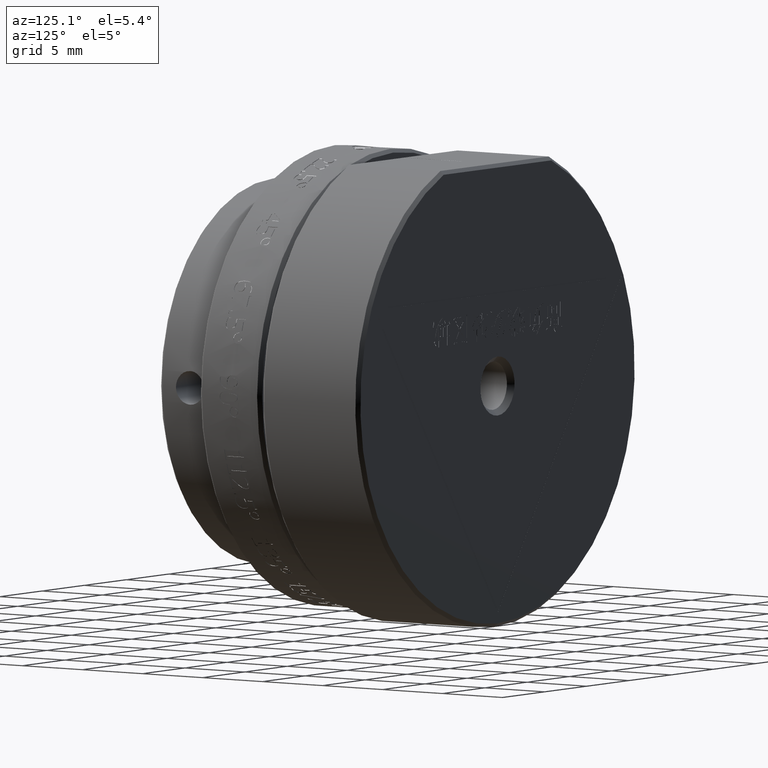
[diagram: clean part render]
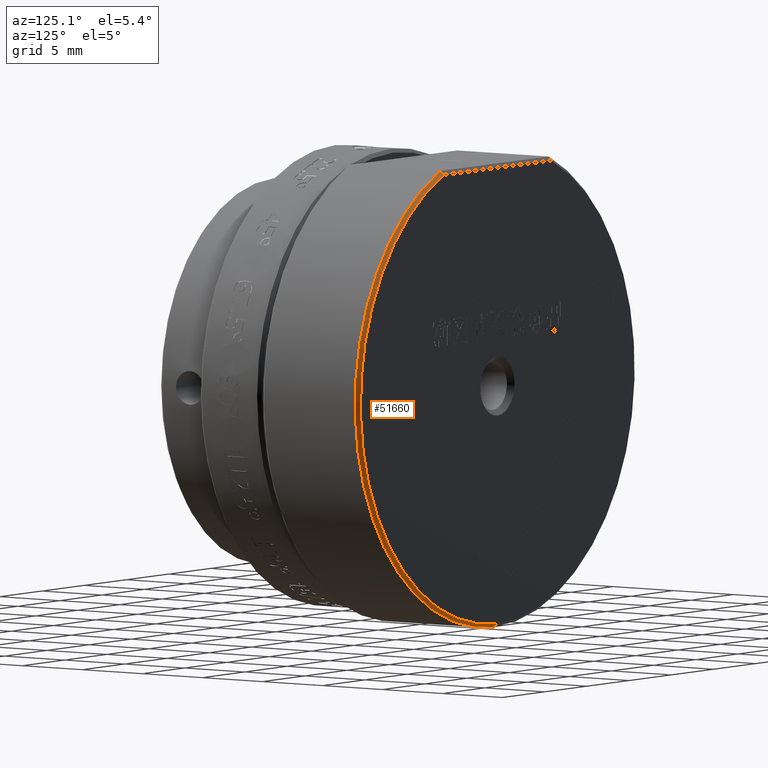
[diagram: same view with one face highlighted and labeled with its STEP entity id]
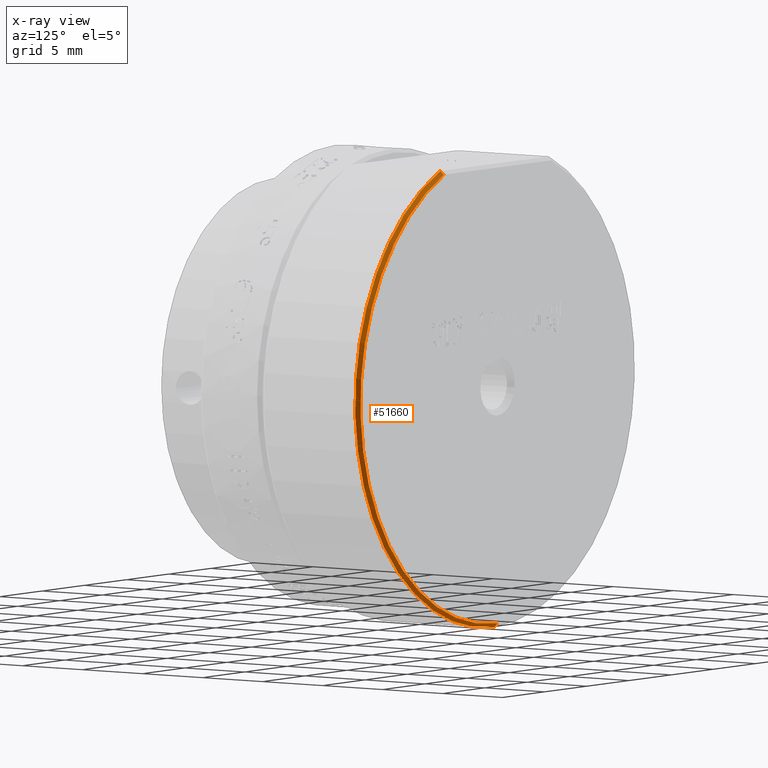
[diagram: x-ray of the same camera — body ghosted, the highlighted face saturated]
A machine part, auxiliary view. The second image highlights one B-rep face of the part: STEP entity #51660.
The next image is the same camera in x-ray: the body ghosted, the highlighted face saturated — about 0% of this face is hidden behind the body in this view.
In plain terms, the highlighted conical surface has half-angle 45 deg.
Its self-contained STEP definition (entity closure, byte-faithful):
#915 = DIRECTION ( 'NONE',  ( 0.000000000000000000, 0.000000000000000000, -1.000000000000000000 ) ) ;
#1962 = ORIENTED_EDGE ( 'NONE', *, *, #57197, .F. ) ;
#4602 = CARTESIAN_POINT ( 'NONE',  ( -1.041037131337824664E-13, -0.2700381522119134070, -16.49999999999983302 ) ) ;
#9187 = DIRECTION ( 'NONE',  ( 0.000000000000000000, 0.000000000000000000, 1.000000000000000000 ) ) ;
#9332 = CARTESIAN_POINT ( 'NONE',  ( 6.385682299567595699, -0.1033647391382173375, 15.03332658692646540 ) ) ;
#12124 = CIRCLE ( 'NONE', #22762, 16.50000000000000355 ) ;
#15619 = VERTEX_POINT ( 'NONE', #61420 ) ;
#18164 = AXIS2_PLACEMENT_3D ( 'NONE', #25486, #25855, #30314 ) ;
#18467 = AXIS2_PLACEMENT_3D ( 'NONE', #57671, #24494, #915 ) ;
#20064 = CARTESIAN_POINT ( 'NONE',  ( 6.419501538281531694, -0.2700381522119134070, 15.20000000000016271 ) ) ;
#21693 = CIRCLE ( 'NONE', #18164, 16.25000000000000355 ) ;
#21948 = LINE ( 'NONE', #4602, #51516 ) ;
#22306 = DIRECTION ( 'NONE',  ( 0.000000000000000000, -0.7071067811865378028, -0.7071067811865573427 ) ) ;
#22762 = AXIS2_PLACEMENT_3D ( 'NONE', #37625, #27238, #9187 ) ;
#24494 = DIRECTION ( 'NONE',  ( -0.000000000000000000, -1.000000000000000000, -0.000000000000000000 ) ) ;
#25486 = CARTESIAN_POINT ( 'NONE',  ( -1.041037131337824664E-13, -0.02003815221192015161, 1.685092966431067047E-13 ) ) ;
#25855 = DIRECTION ( 'NONE',  ( 0.000000000000000000, 1.000000000000000000, 0.000000000000000000 ) ) ;
#27238 = DIRECTION ( 'NONE',  ( -0.000000000000000000, -1.000000000000000000, -0.000000000000000000 ) ) ;
#27816 = ORIENTED_EDGE ( 'NONE', *, *, #54444, .F. ) ;
#30314 = DIRECTION ( 'NONE',  ( 0.000000000000000000, 0.000000000000000000, 1.000000000000000000 ) ) ;
#30687 = VERTEX_POINT ( 'NONE', #68183 ) ;
#30762 = FACE_OUTER_BOUND ( 'NONE', #50611, .T. ) ;
#37625 = CARTESIAN_POINT ( 'NONE',  ( -1.041037131337824664E-13, -0.2700381522119134070, 1.685092966431067047E-13 ) ) ;
#41496 = ORIENTED_EDGE ( 'NONE', *, *, #70941, .F. ) ;
#42834 = CARTESIAN_POINT ( 'NONE',  ( 6.419501538281531694, -0.2700381522119134070, 15.20000000000016271 ) ) ;
#42865 = VERTEX_POINT ( 'NONE', #42834 ) ;
#50611 = EDGE_LOOP ( 'NONE', ( #27816, #41496, #1962, #51629 ) ) ;
#51516 = VECTOR ( 'NONE', #22306, 1000.000000000000000 ) ;
#51629 = ORIENTED_EDGE ( 'NONE', *, *, #59285, .F. ) ;
#51660 = ADVANCED_FACE ( 'NONE', ( #30762 ), #57273, .T. ) ;
#53208 = CARTESIAN_POINT ( 'NONE',  ( 6.368673331236170299, -0.02003815221192015161, 14.95000000000016627 ) ) ;
#53868 = CARTESIAN_POINT ( 'NONE',  ( -1.041037131337824664E-13, -0.2700381522119134070, -16.49999999999983302 ) ) ;
#54444 = EDGE_CURVE ( 'NONE', #15619, #61229, #21948, .T. ) ;
#55231 = B_SPLINE_CURVE_WITH_KNOTS ( 'NONE', 3,
 ( #20064, #64639, #9332, #53208 ),
 .UNSPECIFIED., .F., .F.,
 ( 4, 4 ),
 ( 0.000000000000000000, 0.0003571883349599228453 ),
 .UNSPECIFIED. ) ;
#57197 = EDGE_CURVE ( 'NONE', #42865, #30687, #55231, .T. ) ;
#57273 = CONICAL_SURFACE ( 'NONE', #18467, 16.50000000000000355, 0.7853981633974621568 ) ;
#57671 = CARTESIAN_POINT ( 'NONE',  ( -1.041037131337824664E-13, -0.2700381522119134070, 1.685092966431067047E-13 ) ) ;
#59285 = EDGE_CURVE ( 'NONE', #61229, #42865, #12124, .T. ) ;
#61229 = VERTEX_POINT ( 'NONE', #53868 ) ;
#61420 = CARTESIAN_POINT ( 'NONE',  ( -1.041037131337824664E-13, -0.02003815221192015161, -16.24999999999983302 ) ) ;
#64639 = CARTESIAN_POINT ( 'NONE',  ( 6.402624526701536922, -0.1866981508278244550, 15.11665999861607368 ) ) ;
#68183 = CARTESIAN_POINT ( 'NONE',  ( 6.368673331236170299, -0.02003815221192015161, 14.95000000000016627 ) ) ;
#70941 = EDGE_CURVE ( 'NONE', #30687, #15619, #21693, .T. ) ;